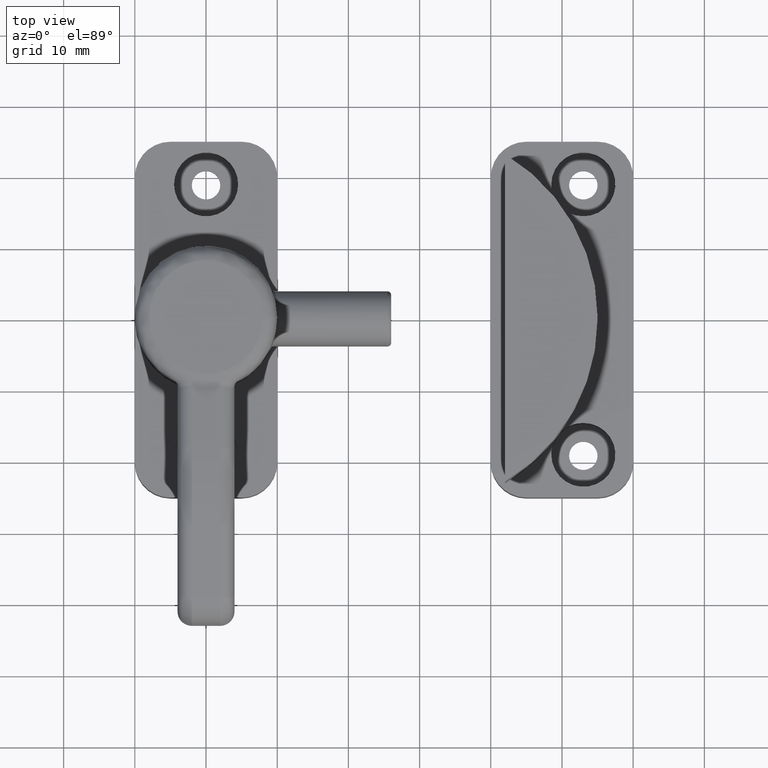
[diagram: clean part render]
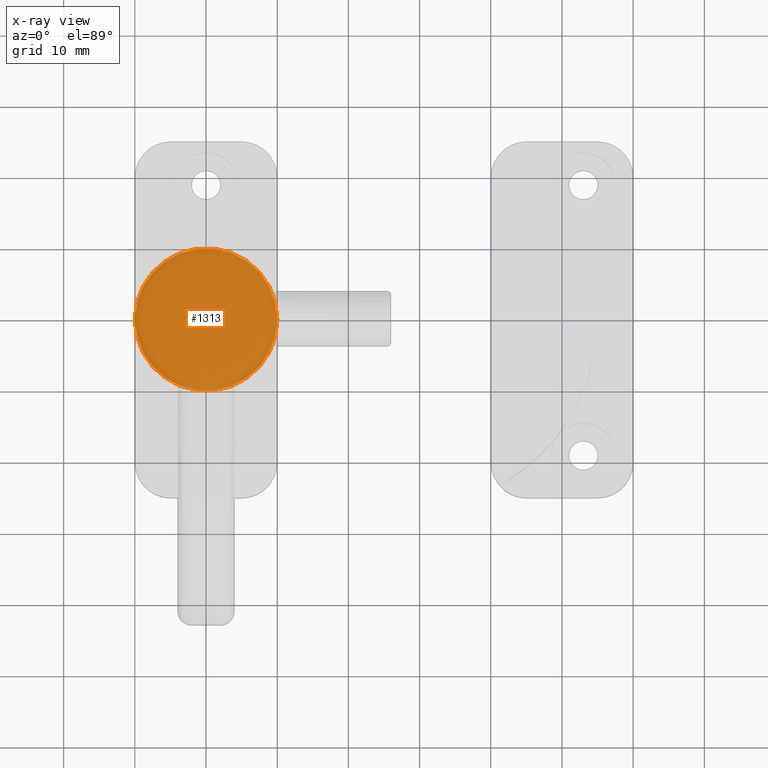
[diagram: x-ray — body ghosted, one internal face saturated and labeled with its STEP entity id]
A machine part, top view, then the same camera in x-ray: the body is ghosted and one INTERNAL B-rep face — a face not visible from any outside direction — is saturated and labeled: STEP entity #1313.
In plain terms, the highlighted planar face has unit normal (0, 0, -1).
Its self-contained STEP definition (entity closure, byte-faithful):
#1288=CARTESIAN_POINT('',(-2.000120000110768,12.000120000159569,8.500000000000030));
#1289=DIRECTION('',(0.0,0.0,-1.0));
#1290=DIRECTION('',(1.0,0.0,0.0));
#1291=AXIS2_PLACEMENT_3D('',#1288,#1289,#1290);
#1292=PLANE('',#1291);
#1293=CARTESIAN_POINT('',(19.999999999999929,2.597242E-014,8.500000000000000));
#1294=VERTEX_POINT('',#1293);
#1295=CARTESIAN_POINT('',(-1.136868E-013,2.842171E-014,8.500000000000000));
#1296=VERTEX_POINT('',#1295);
#1297=CARTESIAN_POINT('',(9.999999999999915,2.719706E-014,8.500000000000000));
#1298=DIRECTION('',(0.0,0.0,-1.0));
#1299=DIRECTION('',(1.0,-1.224647E-016,0.0));
#1300=AXIS2_PLACEMENT_3D('',#1297,#1298,#1299);
#1301=CIRCLE('',#1300,10.000000000000032);
#1302=EDGE_CURVE('',#1294,#1296,#1301,.T.);
#1303=ORIENTED_EDGE('',*,*,#1302,.T.);
#1304=CARTESIAN_POINT('',(9.999999999999915,2.719706E-014,8.500000000000000));
#1305=DIRECTION('',(0.0,0.0,-1.0));
#1306=DIRECTION('',(1.0,-1.224647E-016,0.0));
#1307=AXIS2_PLACEMENT_3D('',#1304,#1305,#1306);
#1308=CIRCLE('',#1307,10.000000000000032);
#1309=EDGE_CURVE('',#1296,#1294,#1308,.T.);
#1310=ORIENTED_EDGE('',*,*,#1309,.T.);
#1311=EDGE_LOOP('',(#1303,#1310));
#1312=FACE_OUTER_BOUND('',#1311,.T.);
#1313=ADVANCED_FACE('',(#1312),#1292,.T.);